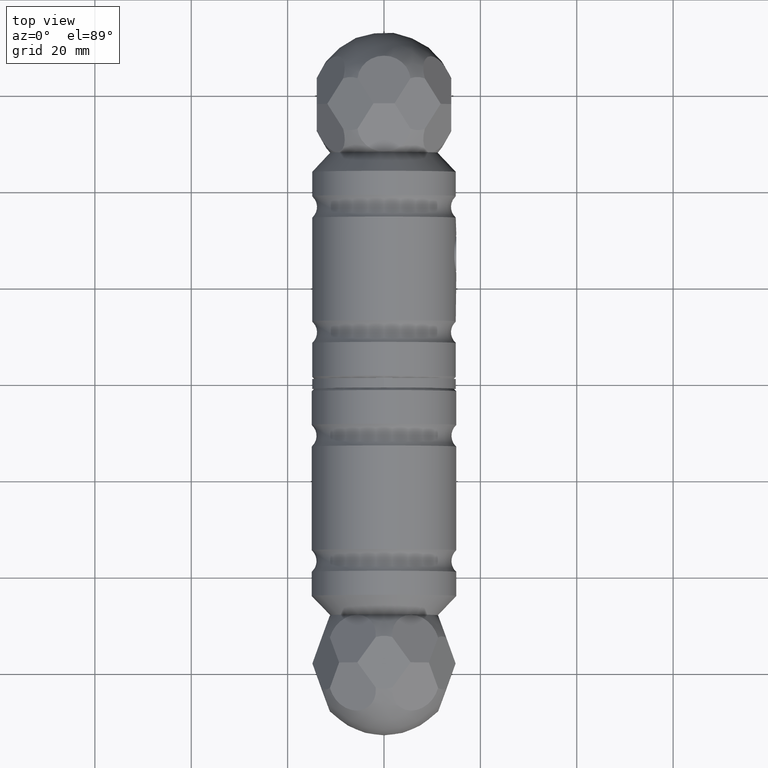
[diagram: clean part render]
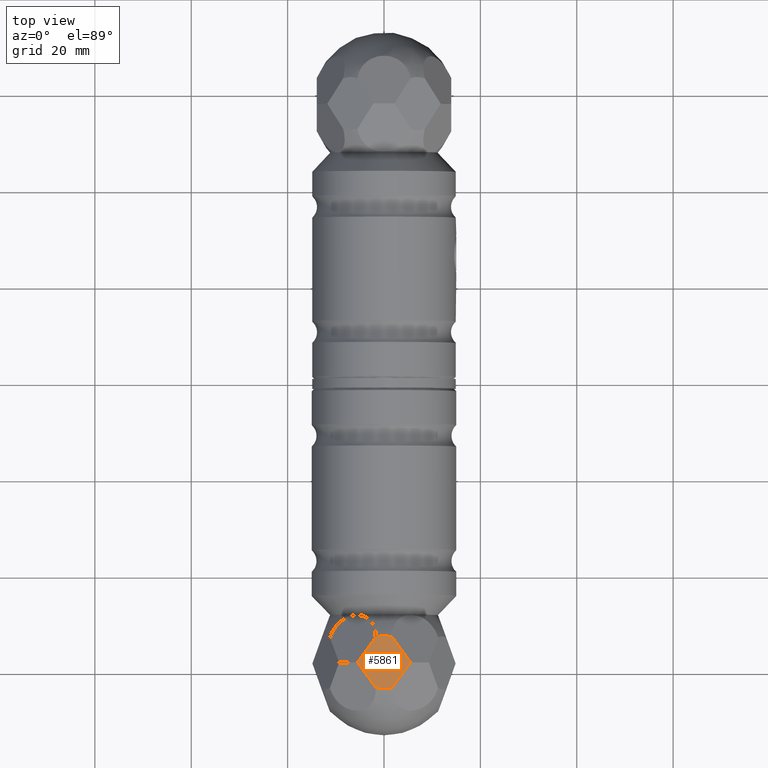
[diagram: same view with one face highlighted and labeled with its STEP entity id]
A machine part, top view. The second image highlights one B-rep face of the part: STEP entity #5861.
In plain terms, the highlighted planar face has unit normal (-0, -0, -1).
Its self-contained STEP definition (entity closure, byte-faithful):
#114 = AXIS2_PLACEMENT_3D ( 'NONE', #9551, #7253, #6146 ) ;
#158 = VECTOR ( 'NONE', #9292, 1000.000000000000114 ) ;
#205 = CARTESIAN_POINT ( 'NONE',  ( 2.462530179769829171E-13, 56.99999999999999289, -13.95000000000000462 ) ) ;
#216 = VERTEX_POINT ( 'NONE', #4704 ) ;
#331 = EDGE_CURVE ( 'NONE', #14500, #8192, #8730, .T. ) ;
#976 = DIRECTION ( 'NONE',  ( 0.5885247359201107864, 0.8084792113654893919, 1.038813655595973355E-14 ) ) ;
#1396 = CARTESIAN_POINT ( 'NONE',  ( 2.462530179769829171E-13, 56.99999999999999289, -13.95000000000000462 ) ) ;
#1624 = LINE ( 'NONE', #13733, #4891 ) ;
#1815 = CARTESIAN_POINT ( 'NONE',  ( 2.462530179769829171E-13, 56.99999999999999289, -13.95000000000000462 ) ) ;
#2404 = DIRECTION ( 'NONE',  ( 1.000000000000000000, 0.000000000000000000, 1.761973406315217351E-14 ) ) ;
#2557 = DIRECTION ( 'NONE',  ( 1.765254609153998899E-14, -0.000000000000000000, -1.000000000000000000 ) ) ;
#2880 = CARTESIAN_POINT ( 'NONE',  ( 1.713864669725834178, 51.75975497768793332, -13.94999999999997264 ) ) ;
#2967 = CARTESIAN_POINT ( 'NONE',  ( -1.713864669725565726, 62.24024502231198852, -13.95000000000003304 ) ) ;
#3245 = LINE ( 'NONE', #10397, #158 ) ;
#3402 = VERTEX_POINT ( 'NONE', #14730 ) ;
#3768 = ORIENTED_EDGE ( 'NONE', *, *, #7929, .F. ) ;
#3797 = CARTESIAN_POINT ( 'NONE',  ( -1.713864669725543965, 51.75975497768800437, -13.95000000000003482 ) ) ;
#4135 = DIRECTION ( 'NONE',  ( 1.000000000000000000, 1.258552433082298136E-15, 1.761973406315217351E-14 ) ) ;
#4188 = AXIS2_PLACEMENT_3D ( 'NONE', #1815, #14512, #4135 ) ;
#4189 = ORIENTED_EDGE ( 'NONE', *, *, #14061, .T. ) ;
#4479 = DIRECTION ( 'NONE',  ( 0.5885247359201012385, -0.8084792113654964973, 1.038813655595948112E-14 ) ) ;
#4700 = ORIENTED_EDGE ( 'NONE', *, *, #331, .T. ) ;
#4704 = CARTESIAN_POINT ( 'NONE',  ( -5.513353776275818241, 57.02073975945660322, -13.95000000000009877 ) ) ;
#4891 = VECTOR ( 'NONE', #4479, 1000.000000000000114 ) ;
#5071 = LINE ( 'NONE', #10012, #11786 ) ;
#5084 = VERTEX_POINT ( 'NONE', #5192 ) ;
#5192 = CARTESIAN_POINT ( 'NONE',  ( 5.513353776276314733, 56.97926024054350336, -13.94999999999990692 ) ) ;
#5361 = CARTESIAN_POINT ( 'NONE',  ( -5.513353776275820017, 56.97926024054342520, -13.95000000000010054 ) ) ;
#5611 = CARTESIAN_POINT ( 'NONE',  ( 3.613609223001073456, 54.36950760911572189, -13.94999999999994067 ) ) ;
#5861 = ADVANCED_FACE ( 'NONE', ( #14408 ), #6043, .F. ) ;
#6043 = PLANE ( 'NONE',  #114 ) ;
#6146 = DIRECTION ( 'NONE',  ( 1.000000000000000000, 0.000000000000000000, 1.765254609153998899E-14 ) ) ;
#6304 = EDGE_CURVE ( 'NONE', #14540, #12319, #9054, .T. ) ;
#7095 = DIRECTION ( 'NONE',  ( 1.000000000000000000, -1.258552433082298136E-15, 1.761973406315217351E-14 ) ) ;
#7248 = DIRECTION ( 'NONE',  ( 1.765254609153998899E-14, -0.000000000000000000, -1.000000000000000000 ) ) ;
#7253 = DIRECTION ( 'NONE',  ( -1.765254609153998899E-14, 0.000000000000000000, 1.000000000000000000 ) ) ;
#7298 = ORIENTED_EDGE ( 'NONE', *, *, #7928, .F. ) ;
#7877 = AXIS2_PLACEMENT_3D ( 'NONE', #205, #7248, #7095 ) ;
#7928 = EDGE_CURVE ( 'NONE', #14540, #5084, #8360, .T. ) ;
#7929 = EDGE_CURVE ( 'NONE', #10463, #12319, #1624, .T. ) ;
#7983 = CARTESIAN_POINT ( 'NONE',  ( 1.713864669725859713, 62.24024502231203826, -13.94999999999996732 ) ) ;
#7992 = VECTOR ( 'NONE', #976, 1000.000000000000114 ) ;
#8192 = VERTEX_POINT ( 'NONE', #7983 ) ;
#8360 = LINE ( 'NONE', #5611, #7992 ) ;
#8510 = CIRCLE ( 'NONE', #14569, 5.513392784846721462 ) ;
#8549 = ORIENTED_EDGE ( 'NONE', *, *, #12928, .T. ) ;
#8622 = EDGE_CURVE ( 'NONE', #216, #14500, #3245, .T. ) ;
#8630 = EDGE_LOOP ( 'NONE', ( #3768, #4189, #11593, #4700, #8549, #9531, #7298, #10263 ) ) ;
#8730 = CIRCLE ( 'NONE', #7877, 5.513392784846721462 ) ;
#8806 = DIRECTION ( 'NONE',  ( 1.765254609153998899E-14, -0.000000000000000000, -1.000000000000000000 ) ) ;
#9054 = CIRCLE ( 'NONE', #4188, 5.513392784846721462 ) ;
#9292 = DIRECTION ( 'NONE',  ( 0.5885247359201015716, 0.8084792113654961643, 1.038896002684099694E-14 ) ) ;
#9531 = ORIENTED_EDGE ( 'NONE', *, *, #13863, .T. ) ;
#9551 = CARTESIAN_POINT ( 'NONE',  ( 2.468775184283345172E-13, 56.99999999999999289, -13.95000000000000462 ) ) ;
#9823 = CARTESIAN_POINT ( 'NONE',  ( 2.462530179769829171E-13, 56.99999999999999289, -13.95000000000000462 ) ) ;
#10012 = CARTESIAN_POINT ( 'NONE',  ( 3.613609223001082782, 59.63049239088428521, -13.94999999999994067 ) ) ;
#10263 = ORIENTED_EDGE ( 'NONE', *, *, #6304, .T. ) ;
#10397 = CARTESIAN_POINT ( 'NONE',  ( -3.613609223000693760, 59.63049239088428521, -13.95000000000006857 ) ) ;
#10463 = VERTEX_POINT ( 'NONE', #5361 ) ;
#11593 = ORIENTED_EDGE ( 'NONE', *, *, #8622, .T. ) ;
#11786 = VECTOR ( 'NONE', #14735, 1000.000000000000000 ) ;
#12296 = DIRECTION ( 'NONE',  ( 1.000000000000000000, 0.000000000000000000, 1.761973406315217351E-14 ) ) ;
#12319 = VERTEX_POINT ( 'NONE', #3797 ) ;
#12928 = EDGE_CURVE ( 'NONE', #8192, #3402, #5071, .T. ) ;
#13733 = CARTESIAN_POINT ( 'NONE',  ( -3.613609223000683546, 54.36950760911571479, -13.95000000000006324 ) ) ;
#13863 = EDGE_CURVE ( 'NONE', #3402, #5084, #14862, .T. ) ;
#14061 = EDGE_CURVE ( 'NONE', #10463, #216, #8510, .T. ) ;
#14408 = FACE_OUTER_BOUND ( 'NONE', #8630, .T. ) ;
#14500 = VERTEX_POINT ( 'NONE', #2967 ) ;
#14512 = DIRECTION ( 'NONE',  ( 1.765254609153998899E-14, -0.000000000000000000, -1.000000000000000000 ) ) ;
#14540 = VERTEX_POINT ( 'NONE', #2880 ) ;
#14569 = AXIS2_PLACEMENT_3D ( 'NONE', #9823, #8806, #12296 ) ;
#14730 = CARTESIAN_POINT ( 'NONE',  ( 5.513353776276314733, 57.02073975945652506, -13.94999999999990692 ) ) ;
#14735 = DIRECTION ( 'NONE',  ( 0.5885247359201113415, -0.8084792113654891699, 1.038896002684116575E-14 ) ) ;
#14862 = CIRCLE ( 'NONE', #14871, 5.513392784846721462 ) ;
#14871 = AXIS2_PLACEMENT_3D ( 'NONE', #1396, #2557, #2404 ) ;